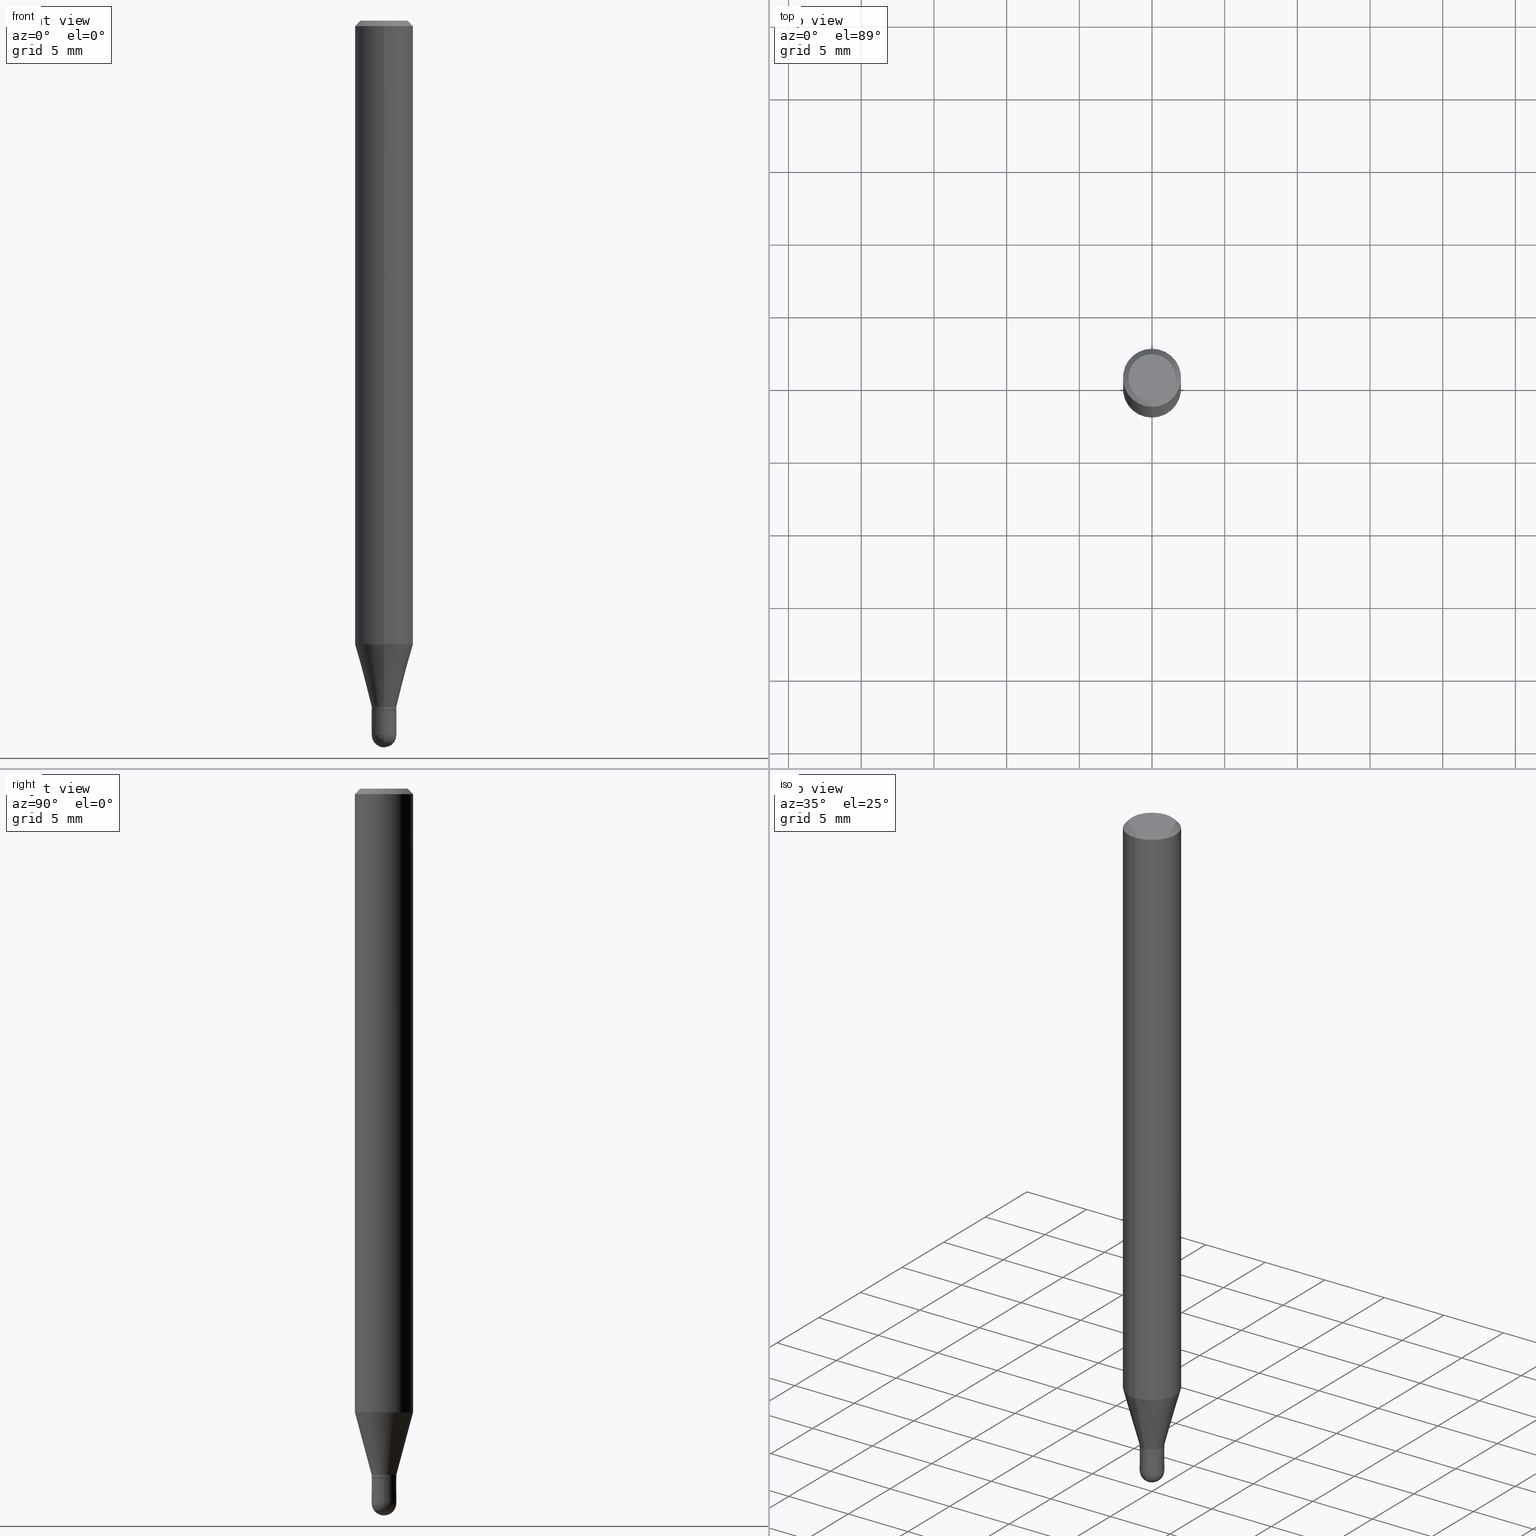
[diagram: canonical four-view strip — front | top / right | iso, engineering-drawing reading convention]
A machine part, canonical four-view strip (front | top / right | iso — engineering-drawing reading convention). The complete STEP part file that produces these views, byte-faithful:
ISO-10303-21;
HEADER;
FILE_DESCRIPTION (( 'STEP AP203' ),
    '1' );
FILE_NAME ('02016.STEP',
    '2024-03-07T19:55:44',
    ( '' ),
    ( '' ),
    'SwSTEP 2.0',
    'SolidWorks 2023',
    '' );
FILE_SCHEMA (( 'CONFIG_CONTROL_DESIGN' ));
ENDSEC;

DATA;
#1 = DIRECTION ( 'NONE',  ( 4.937700262164548042E-15, 0.7071067811865451302, -0.7071067811865499042 ) ) ;
#2 = ORIENTED_EDGE ( 'NONE', *, *, #204, .T. ) ;
#3 = DIRECTION ( 'NONE',  ( -6.982962677686264344E-15, -1.000000000000000000, 3.491511468994125374E-15 ) ) ;
#4 = ORIENTED_EDGE ( 'NONE', *, *, #497, .F. ) ;
#5 = AXIS2_PLACEMENT_3D ( 'NONE', #99, #219, #140 ) ;
#6 = APPROVAL_PERSON_ORGANIZATION ( #127, #77, #210 ) ;
#7 = DIRECTION ( 'NONE',  ( -2.445447766413159620E-29, 3.491511468994126163E-15, 1.000000000000000000 ) ) ;
#8 = VERTEX_POINT ( 'NONE', #371 ) ;
#9 = DIRECTION ( 'NONE',  ( -7.105427357601001859E-15, -1.000000000000000000, 0.000000000000000000 ) ) ;
#10 = CARTESIAN_POINT ( 'NONE',  ( 5.595524044111203155E-16, 0.07874999999999994504, -0.01500000000000004108 ) ) ;
#11 = DIRECTION ( 'NONE',  ( -6.982962677686265922E-15, -1.000000000000000000, 0.000000000000000000 ) ) ;
#12 = VERTEX_POINT ( 'NONE', #10 ) ;
#13 = DIRECTION ( 'NONE',  ( -2.445447766413159620E-29, 3.491511468994126163E-15, 1.000000000000000000 ) ) ;
#14 = ORIENTED_EDGE ( 'NONE', *, *, #191, .F. ) ;
#15 = ADVANCED_FACE ( 'NONE', ( #326 ), #50, .T. ) ;
#16 = DATE_TIME_ROLE ( 'classification_date' ) ;
#17 = ORIENTED_EDGE ( 'NONE', *, *, #377, .F. ) ;
#18 = ADVANCED_FACE ( 'NONE', ( #375 ), #328, .T. ) ;
#19 = CARTESIAN_POINT ( 'NONE',  ( 4.451638707024993845E-16, 0.06375000000000000111, -1.050337537933412309E-16 ) ) ;
#20 = CIRCLE ( 'NONE', #80, 0.06375000000000000111 ) ;
#21 = DATE_AND_TIME ( #453, #391 ) ;
#22 = AXIS2_PLACEMENT_3D ( 'NONE', #481, #239, #287 ) ;
#23 = CARTESIAN_POINT ( 'NONE',  ( 4.544864673878857375E-29, -6.488974065125583763E-15, -1.858500000000000041 ) ) ;
#24 =( NAMED_UNIT ( * ) SI_UNIT ( $, .STERADIAN. ) SOLID_ANGLE_UNIT ( ) );
#25 = DIRECTION ( 'NONE',  ( -6.982962677686265922E-15, -1.000000000000000000, 0.000000000000000000 ) ) ;
#26 = DIRECTION ( 'NONE',  ( -6.982962677686265922E-15, -1.000000000000000000, 3.491511468994125769E-15 ) ) ;
#27 = CIRCLE ( 'NONE', #318, 0.03345000000000000751 ) ;
#28 = CARTESIAN_POINT ( 'NONE',  ( 4.732104413408548662E-29, -6.756190964728428780E-15, -1.935049999999999937 ) ) ;
#29 = CIRCLE ( 'NONE', #349, 0.07875000000000000056 ) ;
#30 = ADVANCED_FACE ( 'NONE', ( #494 ), #291, .F. ) ;
#31 = EDGE_CURVE ( 'NONE', #12, #473, #248, .T. ) ;
#32 = DIRECTION ( 'NONE',  ( -4.851104656540964275E-15, -0.7071067811865500152, -0.7071067811865450192 ) ) ;
#33 = DIRECTION ( 'NONE',  ( -1.000000000000000000, 6.982962677686265922E-15, -4.876176775795935793E-29 ) ) ;
#34 = ORIENTED_EDGE ( 'NONE', *, *, #370, .T. ) ;
#35 = CARTESIAN_POINT ( 'NONE',  ( 0.000000000000000000, 0.000000000000000000, 0.000000000000000000 ) ) ;
#36 = ORIENTED_EDGE ( 'NONE', *, *, #67, .F. ) ;
#37 = CIRCLE ( 'NONE', #398, 0.07875000000000000056 ) ;
#38 = DIRECTION ( 'NONE',  ( -2.445447766413159620E-29, 3.491511468994126163E-15, 1.000000000000000000 ) ) ;
#39 = LINE ( 'NONE', #367, #194 ) ;
#40 = EDGE_LOOP ( 'NONE', ( #485, #482, #397, #53 ) ) ;
#41 = DIRECTION ( 'NONE',  ( 1.000000000000000000, -6.982962677686265922E-15, 4.876176775795935793E-29 ) ) ;
#42 = ORIENTED_EDGE ( 'NONE', *, *, #225, .T. ) ;
#43 = CLOSED_SHELL ( 'NONE', ( #231, #207, #220, #15, #401 ) ) ;
#44 = CONICAL_SURFACE ( 'NONE', #106, 0.03295000000000000012, 0.7853981633974739252 ) ;
#45 = CARTESIAN_POINT ( 'NONE',  ( 4.131432624267467595E-29, -5.898692496779038279E-15, -1.689438098417130441 ) ) ;
#46 = ORIENTED_EDGE ( 'NONE', *, *, #204, .F. ) ;
#47 = APPLICATION_CONTEXT ( 'configuration controlled 3d designs of mechanical parts and assemblies' ) ;
#48 = ORIENTED_EDGE ( 'NONE', *, *, #217, .T. ) ;
#49 = DIRECTION ( 'NONE',  ( -6.982962677686264344E-15, -1.000000000000000000, 3.469013325287953293E-15 ) ) ;
#50 = SPHERICAL_SURFACE ( 'NONE', #230, 0.03344999999999980628 ) ;
#51 = AXIS2_PLACEMENT_3D ( 'NONE', #125, #244, #41 ) ;
#52 = APPROVAL_PERSON_ORGANIZATION ( #381, #226, #293 ) ;
#53 = ORIENTED_EDGE ( 'NONE', *, *, #502, .F. ) ;
#54 = SHAPE_DEFINITION_REPRESENTATION ( #405, #343 ) ;
#55 = DIRECTION ( 'NONE',  ( -2.445447766413159620E-29, 3.491511468994126163E-15, 1.000000000000000000 ) ) ;
#56 = DIRECTION ( 'NONE',  ( 6.982962677686264344E-15, 1.000000000000000000, -3.496114991891765576E-15 ) ) ;
#57 = AXIS2_PLACEMENT_3D ( 'NONE', #478, #118, #155 ) ;
#58 = CARTESIAN_POINT ( 'NONE',  ( -2.300886202297167488E-16, -0.03295000000000652268, -1.868099999999999872 ) ) ;
#59 = PERSON ( 'UNSPECIFIED', 'UNSPECIFIED', 'UNSPECIFIED', ('UNSPECIFIED'), ('UNSPECIFIED'), ('UNSPECIFIED') ) ;
#60 = CARTESIAN_POINT ( 'NONE',  ( 3.668171649619681854E-31, -5.237267203491107326E-17, -0.01499999999999976526 ) ) ;
#61 = FACE_OUTER_BOUND ( 'NONE', #509, .T. ) ;
#62 = APPROVAL ( #334, 'UNSPECIFIED' ) ;
#63 = VECTOR ( 'NONE', #66, 39.37007874015748143 ) ;
#64 = PLANE ( 'NONE',  #98 ) ;
#65 = ORIENTED_EDGE ( 'NONE', *, *, #297, .F. ) ;
#66 = DIRECTION ( 'NONE',  ( -2.445447766413159620E-29, 3.491511468994125769E-15, 1.000000000000000000 ) ) ;
#67 = EDGE_CURVE ( 'NONE', #288, #417, #424, .T. ) ;
#68 = DIRECTION ( 'NONE',  ( -2.445447766413159620E-29, 3.491511468994126163E-15, 1.000000000000000000 ) ) ;
#69 = VERTEX_POINT ( 'NONE', #252 ) ;
#70 = CARTESIAN_POINT ( 'NONE',  ( -5.499083108677933457E-16, -0.07875000000000000056, 2.749565281832874225E-16 ) ) ;
#71 = AXIS2_PLACEMENT_3D ( 'NONE', #60, #208, #91 ) ;
#72 = EDGE_LOOP ( 'NONE', ( #324, #321, #188, #114 ) ) ;
#73 = PLANE ( 'NONE',  #319 ) ;
#74 = ORIENTED_EDGE ( 'NONE', *, *, #286, .F. ) ;
#75 = CYLINDRICAL_SURFACE ( 'NONE', #51, 0.03345000000000000751 ) ;
#76 = EDGE_LOOP ( 'NONE', ( #249, #407, #48, #285 ) ) ;
#77 = APPROVAL ( #90, 'UNSPECIFIED' ) ;
#78 = FACE_OUTER_BOUND ( 'NONE', #79, .T. ) ;
#79 = EDGE_LOOP ( 'NONE', ( #240, #156, #14, #36 ) ) ;
#80 = AXIS2_PLACEMENT_3D ( 'NONE', #175, #173, #342 ) ;
#81 = AXIS2_PLACEMENT_3D ( 'NONE', #35, #110, #503 ) ;
#82 = CC_DESIGN_SECURITY_CLASSIFICATION ( #410, ( #455 ) ) ;
#83 = DIRECTION ( 'NONE',  ( 1.000000000000000000, -6.982962677686277755E-15, 0.000000000000000000 ) ) ;
#84 = ORIENTED_EDGE ( 'NONE', *, *, #297, .T. ) ;
#85 = CARTESIAN_POINT ( 'NONE',  ( 2.335801015686522499E-16, 0.03344999999999315188, -1.935049999999999937 ) ) ;
#86 = FACE_OUTER_BOUND ( 'NONE', #309, .T. ) ;
#87 = EDGE_LOOP ( 'NONE', ( #282, #450, #46, #195, #224 ) ) ;
#88 = VECTOR ( 'NONE', #308, 39.37007874015748143 ) ;
#89 = ORGANIZATION ( 'UNSPECIFIED', 'UNSPECIFIED', '' ) ;
#90 = APPROVAL_STATUS ( 'not_yet_approved' ) ;
#91 = DIRECTION ( 'NONE',  ( -6.982962677686264344E-15, -1.000000000000000000, 3.496114991891765576E-15 ) ) ;
#92 = COORDINATED_UNIVERSAL_TIME_OFFSET ( 5, 0, .BEHIND. ) ;
#93 = DIRECTION ( 'NONE',  ( 2.445447766413159620E-29, -3.491511468994125769E-15, -1.000000000000000000 ) ) ;
#94 = ADVANCED_FACE ( 'NONE', ( #216 ), #419, .T. ) ;
#95 = CALENDAR_DATE ( 2024, 7, 3 ) ;
#96 = LINE ( 'NONE', #427, #105 ) ;
#97 = PERSON_AND_ORGANIZATION_ROLE ( 'design_owner' ) ;
#98 = AXIS2_PLACEMENT_3D ( 'NONE', #147, #268, #33 ) ;
#99 = CARTESIAN_POINT ( 'NONE',  ( 4.568380276834453485E-29, -6.522436289092879591E-15, -1.868099999999999872 ) ) ;
#100 = ADVANCED_FACE ( 'NONE', ( #61 ), #430, .T. ) ;
#101 = PERSON_AND_ORGANIZATION ( #59, #89 ) ;
#102 = FACE_OUTER_BOUND ( 'NONE', #109, .T. ) ;
#103 = CARTESIAN_POINT ( 'NONE',  ( -2.335801015686050661E-16, -0.03344999999999992424, 1.167910586378532433E-16 ) ) ;
#104 = VERTEX_POINT ( 'NONE', #498 ) ;
#105 = VECTOR ( 'NONE', #380, 39.37007874015748143 ) ;
#106 = AXIS2_PLACEMENT_3D ( 'NONE', #372, #369, #11 ) ;
#107 = DIRECTION ( 'NONE',  ( 6.982962677686265133E-15, 1.000000000000000000, 0.000000000000000000 ) ) ;
#108 = CARTESIAN_POINT ( 'NONE',  ( 2.341238314329986674E-16, 0.03294999999999347756, -1.868099999999999872 ) ) ;
#109 = EDGE_LOOP ( 'NONE', ( #442, #154, #190, #395 ) ) ;
#110 = DIRECTION ( 'NONE',  ( -2.445468806185136597E-29, 3.491481338843145583E-15, 1.000000000000000000 ) ) ;
#111 = ORIENTED_EDGE ( 'NONE', *, *, #138, .T. ) ;
#112 = DIRECTION ( 'NONE',  ( 1.000000000000000000, -6.982962677686277755E-15, 0.000000000000000000 ) ) ;
#113 = EDGE_CURVE ( 'NONE', #117, #417, #492, .T. ) ;
#114 = ORIENTED_EDGE ( 'NONE', *, *, #255, .F. ) ;
#115 = CONICAL_SURFACE ( 'NONE', #178, 0.03344999999999992424, 0.2617993877991506846 ) ;
#116 =( LENGTH_UNIT ( ) NAMED_UNIT ( * ) SI_UNIT ( $, .METRE. ) );
#117 = VERTEX_POINT ( 'NONE', #459 ) ;
#118 = DIRECTION ( 'NONE',  ( -2.445447766413159620E-29, 3.491511468994126163E-15, 1.000000000000000000 ) ) ;
#119 = EDGE_LOOP ( 'NONE', ( #270, #445 ) ) ;
#120 = CYLINDRICAL_SURFACE ( 'NONE', #439, 0.07875000000000000056 ) ;
#121 = VERTEX_POINT ( 'NONE', #132 ) ;
#122 = CIRCLE ( 'NONE', #22, 0.07875000000000000056 ) ;
#123 = DIRECTION ( 'NONE',  ( -6.982962677686265922E-15, -1.000000000000000000, 0.000000000000000000 ) ) ;
#124 = ORIENTED_EDGE ( 'NONE', *, *, #158, .T. ) ;
#125 = CARTESIAN_POINT ( 'NONE',  ( 0.000000000000000000, 0.000000000000000000, 0.000000000000000000 ) ) ;
#126 = ORIENTED_EDGE ( 'NONE', *, *, #31, .F. ) ;
#127 = PERSON_AND_ORGANIZATION ( #59, #89 ) ;
#128 = DIRECTION ( 'NONE',  ( -2.445447766413159620E-29, 3.491511468994126163E-15, 1.000000000000000000 ) ) ;
#129 = AXIS2_PLACEMENT_3D ( 'NONE', #279, #323, #3 ) ;
#130 = APPROVAL_STATUS ( 'not_yet_approved' ) ;
#131 = EDGE_CURVE ( 'NONE', #274, #121, #96, .T. ) ;
#132 = CARTESIAN_POINT ( 'NONE',  ( -5.499083108677522263E-16, -0.07875000000000592637, -1.689438098417130218 ) ) ;
#133 = CALENDAR_DATE ( 2024, 7, 3 ) ;
#134 = DIRECTION ( 'NONE',  ( -2.445447766413159620E-29, 3.491511468994126163E-15, 1.000000000000000000 ) ) ;
#135 = EDGE_CURVE ( 'NONE', #69, #393, #408, .T. ) ;
#136 = APPLICATION_PROTOCOL_DEFINITION ( 'international standard', 'config_control_design', 1994, #47 ) ;
#137 = CARTESIAN_POINT ( 'NONE',  ( 4.567118248553216749E-29, -6.520746819493429701E-15, -1.867600000000000149 ) ) ;
#138 = EDGE_CURVE ( 'NONE', #8, #431, #144, .T. ) ;
#139 = COORDINATED_UNIVERSAL_TIME_OFFSET ( 5, 0, .BEHIND. ) ;
#140 = DIRECTION ( 'NONE',  ( 1.000000000000000000, -6.982962677686279332E-15, 0.000000000000000000 ) ) ;
#141 = LINE ( 'NONE', #307, #339 ) ;
#142 = CYLINDRICAL_SURFACE ( 'NONE', #493, 0.07875000000000000056 ) ;
#143 = VERTEX_POINT ( 'NONE', #387 ) ;
#144 = CIRCLE ( 'NONE', #467, 0.03345000000000000057 ) ;
#145 = CIRCLE ( 'NONE', #250, 0.03345000000000000751 ) ;
#146 = DIRECTION ( 'NONE',  ( 6.982962677686265922E-15, 1.000000000000000000, 0.000000000000000000 ) ) ;
#147 = CARTESIAN_POINT ( 'NONE',  ( 2.335801015686512638E-16, 0.03344999999999347801, -1.868099999999999872 ) ) ;
#148 = EDGE_LOOP ( 'NONE', ( #124, #185, #4, #316 ) ) ;
#149 = EDGE_CURVE ( 'NONE', #161, #198, #20, .T. ) ;
#150 = DIRECTION ( 'NONE',  ( -6.982962677686264344E-15, -1.000000000000000000, 3.491511468994126163E-15 ) ) ;
#151 = ORIENTED_EDGE ( 'NONE', *, *, #404, .F. ) ;
#152 = FACE_OUTER_BOUND ( 'NONE', #366, .T. ) ;
#153 = VECTOR ( 'NONE', #411, 39.37007874015748143 ) ;
#154 = ORIENTED_EDGE ( 'NONE', *, *, #286, .T. ) ;
#155 = DIRECTION ( 'NONE',  ( -6.982962677686265922E-15, -1.000000000000000000, 0.000000000000000000 ) ) ;
#156 = ORIENTED_EDGE ( 'NONE', *, *, #361, .T. ) ;
#157 = FACE_OUTER_BOUND ( 'NONE', #245, .T. ) ;
#158 = EDGE_CURVE ( 'NONE', #274, #487, #382, .T. ) ;
#159 = ORIENTED_EDGE ( 'NONE', *, *, #271, .T. ) ;
#160 = CARTESIAN_POINT ( 'NONE',  ( 0.000000000000000000, 0.000000000000000000, 0.000000000000000000 ) ) ;
#161 = VERTEX_POINT ( 'NONE', #346 ) ;
#162 = CIRCLE ( 'NONE', #212, 0.03295000000000000012 ) ;
#163 = LOCAL_TIME ( 14, 55, 44.00000000000000000, #215 ) ;
#164 = CARTESIAN_POINT ( 'NONE',  ( 4.729243882171243722E-29, -6.760287408271577082E-15, -1.935050000000000159 ) ) ;
#165 = ORIENTED_EDGE ( 'NONE', *, *, #149, .F. ) ;
#166 = MANIFOLD_SOLID_BREP ( 'Body-Move/Copy2[2]', #347 ) ;
#167 = ORIENTED_EDGE ( 'NONE', *, *, #31, .T. ) ;
#168 = DATE_AND_TIME ( #133, #196 ) ;
#169 = DIRECTION ( 'NONE',  ( 1.000000000000000000, -6.982962677686277755E-15, 0.000000000000000000 ) ) ;
#170 = AXIS2_PLACEMENT_3D ( 'NONE', #28, #211, #169 ) ;
#171 = VECTOR ( 'NONE', #1, 39.37007874015748143 ) ;
#172 = PERSON_AND_ORGANIZATION_ROLE ( 'design_supplier' ) ;
#173 = DIRECTION ( 'NONE',  ( -2.445447766413159620E-29, 3.491511468994126163E-15, 1.000000000000000000 ) ) ;
#174 = DIRECTION ( 'NONE',  ( 0.000000000000000000, 0.000000000000000000, 1.000000000000000000 ) ) ;
#175 = CARTESIAN_POINT ( 'NONE',  ( -5.749252704915138258E-45, 8.208550611080714984E-31, 2.351002047100685974E-16 ) ) ;
#176 = PERSON_AND_ORGANIZATION ( #59, #89 ) ;
#177 = DIRECTION ( 'NONE',  ( -6.982962677686265922E-15, -1.000000000000000000, 0.000000000000000000 ) ) ;
#178 = AXIS2_PLACEMENT_3D ( 'NONE', #444, #325, #365 ) ;
#179 = LINE ( 'NONE', #429, #171 ) ;
#180 = LINE ( 'NONE', #359, #88 ) ;
#181 = EDGE_CURVE ( 'NONE', #487, #274, #446, .T. ) ;
#182 = FACE_OUTER_BOUND ( 'NONE', #234, .T. ) ;
#183 = VECTOR ( 'NONE', #263, 39.37007874015748143 ) ;
#184 = DIRECTION ( 'NONE',  ( -6.982962677686264344E-15, -1.000000000000000000, 3.496114991891765576E-15 ) ) ;
#185 = ORIENTED_EDGE ( 'NONE', *, *, #388, .T. ) ;
#186 = DIRECTION ( 'NONE',  ( -2.445447766413159620E-29, 3.491511468994126163E-15, 1.000000000000000000 ) ) ;
#187 = ADVANCED_FACE ( 'NONE', ( #261 ), #500, .T. ) ;
#188 = ORIENTED_EDGE ( 'NONE', *, *, #135, .F. ) ;
#189 = DIRECTION ( 'NONE',  ( -2.445468806185136597E-29, 3.491481338843145583E-15, 1.000000000000000000 ) ) ;
#190 = ORIENTED_EDGE ( 'NONE', *, *, #271, .F. ) ;
#191 = EDGE_CURVE ( 'NONE', #417, #117, #310, .T. ) ;
#192 = CARTESIAN_POINT ( 'NONE',  ( -5.499083108677930499E-16, -0.07875000000000004219, -0.01499999999999948944 ) ) ;
#193 = AXIS2_PLACEMENT_3D ( 'NONE', #335, #254, #56 ) ;
#194 = VECTOR ( 'NONE', #277, 39.37007874015748143 ) ;
#195 = ORIENTED_EDGE ( 'NONE', *, *, #348, .F. ) ;
#196 = LOCAL_TIME ( 14, 55, 44.00000000000000000, #295 ) ;
#197 = DIRECTION ( 'NONE',  ( -2.445447766413159620E-29, 3.491511468994126163E-15, 1.000000000000000000 ) ) ;
#198 = VERTEX_POINT ( 'NONE', #257 ) ;
#199 = CARTESIAN_POINT ( 'NONE',  ( 4.732104413408548662E-29, -6.756190964728428780E-15, -1.935049999999999937 ) ) ;
#200 = DIRECTION ( 'NONE',  ( 2.445447766413159620E-29, -3.491511468994126163E-15, -1.000000000000000000 ) ) ;
#201 = LINE ( 'NONE', #362, #153 ) ;
#202 = DIRECTION ( 'NONE',  ( 6.982962677686265922E-15, 1.000000000000000000, 0.000000000000000000 ) ) ;
#203 = AXIS2_PLACEMENT_3D ( 'NONE', #466, #68, #315 ) ;
#204 = EDGE_CURVE ( 'NONE', #431, #8, #329, .T. ) ;
#205 = PERSON_AND_ORGANIZATION ( #59, #89 ) ;
#206 = ORIENTED_EDGE ( 'NONE', *, *, #426, .T. ) ;
#207 = ADVANCED_FACE ( 'NONE', ( #305 ), #262, .T. ) ;
#208 = DIRECTION ( 'NONE',  ( -2.445447766413159620E-29, 3.491511468994126163E-15, 1.000000000000000000 ) ) ;
#209 = APPLICATION_CONTEXT ( 'configuration controlled 3d designs of mechanical parts and assemblies' ) ;
#210 = APPROVAL_ROLE ( '' ) ;
#211 = DIRECTION ( 'NONE',  ( -2.445468806185136597E-29, 3.491481338843145583E-15, 1.000000000000000000 ) ) ;
#212 = AXIS2_PLACEMENT_3D ( 'NONE', #476, #7, #123 ) ;
#213 = LOCAL_TIME ( 14, 55, 44.00000000000000000, #341 ) ;
#214 = ADVANCED_FACE ( 'NONE', ( #102 ), #142, .T. ) ;
#215 = COORDINATED_UNIVERSAL_TIME_OFFSET ( 5, 0, .BEHIND. ) ;
#216 = FACE_OUTER_BOUND ( 'NONE', #452, .T. ) ;
#217 = EDGE_CURVE ( 'NONE', #417, #274, #471, .T. ) ;
#218 = APPROVAL_ROLE ( '' ) ;
#219 = DIRECTION ( 'NONE',  ( -2.445468806185136597E-29, 3.491481338843145583E-15, 1.000000000000000000 ) ) ;
#220 = ADVANCED_FACE ( 'NONE', ( #311 ), #64, .F. ) ;
#221 = DIRECTION ( 'NONE',  ( -4.937700262164674260E-15, -0.7071067811865632269, 0.7071067811865319186 ) ) ;
#222 = CC_DESIGN_APPROVAL ( #77, ( #410 ) ) ;
#223 = CARTESIAN_POINT ( 'NONE',  ( 4.732104413408548662E-29, -6.756190964728428780E-15, -1.935049999999999937 ) ) ;
#224 = ORIENTED_EDGE ( 'NONE', *, *, #377, .T. ) ;
#225 = EDGE_CURVE ( 'NONE', #393, #104, #374, .T. ) ;
#226 = APPROVAL ( #130, 'UNSPECIFIED' ) ;
#227 = LINE ( 'NONE', #273, #409 ) ;
#228 = ORIENTED_EDGE ( 'NONE', *, *, #304, .T. ) ;
#229 = CARTESIAN_POINT ( 'NONE',  ( 4.729243882171243722E-29, -6.760287408271577082E-15, -1.935050000000000159 ) ) ;
#230 = AXIS2_PLACEMENT_3D ( 'NONE', #243, #413, #202 ) ;
#231 = ADVANCED_FACE ( 'NONE', ( #356 ), #400, .T. ) ;
#232 = CIRCLE ( 'NONE', #301, 0.03344999999999980628 ) ;
#233 = LINE ( 'NONE', #70, #63 ) ;
#234 = EDGE_LOOP ( 'NONE', ( #403, #477 ) ) ;
#235 = CARTESIAN_POINT ( 'NONE',  ( 4.732104413408548662E-29, -6.756190964728428780E-15, -1.935049999999999937 ) ) ;
#236 = ORIENTED_EDGE ( 'NONE', *, *, #113, .F. ) ;
#237 = FACE_OUTER_BOUND ( 'NONE', #40, .T. ) ;
#238 = VERTEX_POINT ( 'NONE', #435 ) ;
#239 = DIRECTION ( 'NONE',  ( -2.445447766413159620E-29, 3.491511468994126163E-15, 1.000000000000000000 ) ) ;
#240 = ORIENTED_EDGE ( 'NONE', *, *, #312, .T. ) ;
#241 = PRODUCT_DEFINITION ( 'UNKNOWN', '', #455, #422 ) ;
#242 = CARTESIAN_POINT ( 'NONE',  ( 4.568340972436423425E-29, -6.522492575227926704E-15, -1.868099999999999872 ) ) ;
#243 = CARTESIAN_POINT ( 'NONE',  ( 4.729243882171243722E-29, -6.760287408271577082E-15, -1.935050000000000159 ) ) ;
#244 = DIRECTION ( 'NONE',  ( -2.445468806185136597E-29, 3.491481338843145583E-15, 1.000000000000000000 ) ) ;
#245 = EDGE_LOOP ( 'NONE', ( #441, #206, #353, #236 ) ) ;
#246 = DIRECTION ( 'NONE',  ( -2.445447766413159620E-29, 3.491511468994126163E-15, 1.000000000000000000 ) ) ;
#247 = EDGE_CURVE ( 'NONE', #121, #473, #233, .T. ) ;
#248 = CIRCLE ( 'NONE', #71, 0.07875000000000000056 ) ;
#249 = ORIENTED_EDGE ( 'NONE', *, *, #370, .F. ) ;
#250 = AXIS2_PLACEMENT_3D ( 'NONE', #223, #269, #112 ) ;
#251 = CARTESIAN_POINT ( 'NONE',  ( 0.000000000000000000, 0.000000000000000000, 0.000000000000000000 ) ) ;
#252 = CARTESIAN_POINT ( 'NONE',  ( -0.03345000000000000751, -6.401637081798900423E-15, -1.935049999999999937 ) ) ;
#253 =( NAMED_UNIT ( * ) PLANE_ANGLE_UNIT ( ) SI_UNIT ( $, .RADIAN. ) );
#254 = DIRECTION ( 'NONE',  ( 2.445447766413159620E-29, -3.491511468994126163E-15, -1.000000000000000000 ) ) ;
#255 = EDGE_CURVE ( 'NONE', #470, #69, #145, .T. ) ;
#256 = PERSON_AND_ORGANIZATION ( #59, #89 ) ;
#257 = CARTESIAN_POINT ( 'NONE',  ( 4.975360907851465623E-16, 0.06375000000000000111, 1.251634856169309859E-17 ) ) ;
#258 = AXIS2_PLACEMENT_3D ( 'NONE', #496, #134, #461 ) ;
#259 = CC_DESIGN_DATE_AND_TIME_ASSIGNMENT ( #168, #336, ( #241 ) ) ;
#260 = PERSON_AND_ORGANIZATION ( #59, #89 ) ;
#261 = FACE_OUTER_BOUND ( 'NONE', #76, .T. ) ;
#262 = SPHERICAL_SURFACE ( 'NONE', #281, 0.03344999999999980628 ) ;
#263 = DIRECTION ( 'NONE',  ( -2.445447766413159620E-29, 3.491511468994125769E-15, 1.000000000000000000 ) ) ;
#264 = ORIENTED_EDGE ( 'NONE', *, *, #158, .F. ) ;
#265 = CC_DESIGN_DATE_AND_TIME_ASSIGNMENT ( #21, #16, ( #410 ) ) ;
#266 = AXIS2_PLACEMENT_3D ( 'NONE', #137, #491, #25 ) ;
#267 = CIRCLE ( 'NONE', #203, 0.03295000000000000012 ) ;
#268 = DIRECTION ( 'NONE',  ( 2.438088387897960049E-29, -3.491481338843145188E-15, -1.000000000000000000 ) ) ;
#269 = DIRECTION ( 'NONE',  ( -2.445468806185136597E-29, 3.491481338843145583E-15, 1.000000000000000000 ) ) ;
#270 = ORIENTED_EDGE ( 'NONE', *, *, #404, .T. ) ;
#271 = EDGE_CURVE ( 'NONE', #473, #12, #29, .T. ) ;
#272 = DIRECTION ( 'NONE',  ( 1.000000000000000000, -6.982962677686277755E-15, 0.000000000000000000 ) ) ;
#273 = CARTESIAN_POINT ( 'NONE',  ( -5.402642173245076924E-16, -0.07875000000000004219, -0.01499999999999948944 ) ) ;
#274 = VERTEX_POINT ( 'NONE', #505 ) ;
#275 = CARTESIAN_POINT ( 'NONE',  ( -2.376765451117054943E-16, -0.03345000000000666190, -1.935049999999999937 ) ) ;
#276 = EDGE_LOOP ( 'NONE', ( #363, #415, #17, #278 ) ) ;
#277 = DIRECTION ( 'NONE',  ( -2.445447766413159620E-29, 3.491511468994125769E-15, 1.000000000000000000 ) ) ;
#278 = ORIENTED_EDGE ( 'NONE', *, *, #225, .F. ) ;
#279 = CARTESIAN_POINT ( 'NONE',  ( -5.749252704915138258E-45, 8.208550611080714984E-31, 2.351002047100685974E-16 ) ) ;
#280 = AXIS2_PLACEMENT_3D ( 'NONE', #23, #456, #299 ) ;
#281 = AXIS2_PLACEMENT_3D ( 'NONE', #351, #433, #146 ) ;
#282 = ORIENTED_EDGE ( 'NONE', *, *, #255, .T. ) ;
#283 = CC_DESIGN_APPROVAL ( #226, ( #455 ) ) ;
#284 = DIRECTION ( 'NONE',  ( -6.982962677686264344E-15, -1.000000000000000000, 3.491511468994126163E-15 ) ) ;
#285 = ORIENTED_EDGE ( 'NONE', *, *, #181, .F. ) ;
#286 = EDGE_CURVE ( 'NONE', #143, #12, #402, .T. ) ;
#287 = DIRECTION ( 'NONE',  ( -6.982962677686264344E-15, -1.000000000000000000, 3.469013325287953293E-15 ) ) ;
#288 = VERTEX_POINT ( 'NONE', #511 ) ;
#289 = CALENDAR_DATE ( 2024, 7, 3 ) ;
#290 = CC_DESIGN_PERSON_AND_ORGANIZATION_ASSIGNMENT ( #458, #464, ( #455 ) ) ;
#291 = PLANE ( 'NONE',  #354 ) ;
#292 = AXIS2_PLACEMENT_3D ( 'NONE', #235, #472, #272 ) ;
#293 = APPROVAL_ROLE ( '' ) ;
#294 = DIRECTION ( 'NONE',  ( 6.982962677686264344E-15, 1.000000000000000000, -3.496114991891765576E-15 ) ) ;
#295 = COORDINATED_UNIVERSAL_TIME_OFFSET ( 5, 0, .BEHIND. ) ;
#296 = CARTESIAN_POINT ( 'NONE',  ( 4.568380276834453485E-29, -6.522436289092879591E-15, -1.868099999999999872 ) ) ;
#297 = EDGE_CURVE ( 'NONE', #161, #473, #227, .T. ) ;
#298 = MECHANICAL_CONTEXT ( 'NONE', #47, 'mechanical' ) ;
#299 = DIRECTION ( 'NONE',  ( -6.982962677686265922E-15, -1.000000000000000000, 0.000000000000000000 ) ) ;
#300 = AXIS2_PLACEMENT_3D ( 'NONE', #448, #200, #294 ) ;
#301 = AXIS2_PLACEMENT_3D ( 'NONE', #164, #414, #9 ) ;
#302 = UNCERTAINTY_MEASURE_WITH_UNIT (LENGTH_MEASURE( 1.000000000000000082E-05 ), #486, 'distance_accuracy_value', 'NONE');
#303 = APPROVAL_DATE_TIME ( #499, #62 ) ;
#304 = EDGE_CURVE ( 'NONE', #198, #12, #179, .T. ) ;
#305 = FACE_OUTER_BOUND ( 'NONE', #72, .T. ) ;
#306 = EDGE_CURVE ( 'NONE', #69, #8, #180, .T. ) ;
#307 = CARTESIAN_POINT ( 'NONE',  ( 0.03345000000000000751, -2.335801015686056578E-16, 1.631081131503740879E-30 ) ) ;
#308 = DIRECTION ( 'NONE',  ( -2.445468806185136877E-29, 3.491481338843145188E-15, 1.000000000000000000 ) ) ;
#309 = EDGE_LOOP ( 'NONE', ( #74, #438, #313, #126 ) ) ;
#310 = CIRCLE ( 'NONE', #258, 0.03344999999999992424 ) ;
#311 = FACE_OUTER_BOUND ( 'NONE', #412, .T. ) ;
#312 = EDGE_CURVE ( 'NONE', #288, #238, #267, .T. ) ;
#313 = ORIENTED_EDGE ( 'NONE', *, *, #247, .T. ) ;
#314 = CARTESIAN_POINT ( 'NONE',  ( 4.568340972436423425E-29, -6.522492575227926704E-15, -1.868099999999999872 ) ) ;
#315 = DIRECTION ( 'NONE',  ( -6.982962677686265922E-15, -1.000000000000000000, 0.000000000000000000 ) ) ;
#316 = ORIENTED_EDGE ( 'NONE', *, *, #131, .F. ) ;
#317 = AXIS2_PLACEMENT_3D ( 'NONE', #389, #55, #26 ) ;
#318 = AXIS2_PLACEMENT_3D ( 'NONE', #199, #189, #83 ) ;
#319 = AXIS2_PLACEMENT_3D ( 'NONE', #314, #350, #440 ) ;
#320 = CARTESIAN_POINT ( 'NONE',  ( -2.335801015685601996E-16, -0.03345000000000655782, -1.867600000000000149 ) ) ;
#321 = ORIENTED_EDGE ( 'NONE', *, *, #454, .T. ) ;
#322 = EDGE_CURVE ( 'NONE', #333, #470, #425, .T. ) ;
#323 = DIRECTION ( 'NONE',  ( -2.445447766413159620E-29, 3.491511468994126163E-15, 1.000000000000000000 ) ) ;
#324 = ORIENTED_EDGE ( 'NONE', *, *, #322, .F. ) ;
#325 = DIRECTION ( 'NONE',  ( -2.445447766413159620E-29, 3.491511468994126163E-15, 1.000000000000000000 ) ) ;
#326 = FACE_OUTER_BOUND ( 'NONE', #276, .T. ) ;
#327 = DIRECTION ( 'NONE',  ( 5.024295867788190974E-15, 0.7071067811865681119, 0.7071067811865270336 ) ) ;
#328 = CONICAL_SURFACE ( 'NONE', #300, 0.07875000000000000056, 0.7853981633974483900 ) ;
#329 = CIRCLE ( 'NONE', #5, 0.03345000000000000057 ) ;
#330 = ORIENTED_EDGE ( 'NONE', *, *, #348, .T. ) ;
#331 = DIMENSIONAL_EXPONENTS ( 1.000000000000000000, 0.000000000000000000, 0.000000000000000000, 0.000000000000000000, 0.000000000000000000, 0.000000000000000000, 0.000000000000000000 ) ;
#332 = DIRECTION ( 'NONE',  ( -6.982962677686265922E-15, -1.000000000000000000, 0.000000000000000000 ) ) ;
#333 = VERTEX_POINT ( 'NONE', #394 ) ;
#334 = APPROVAL_STATUS ( 'not_yet_approved' ) ;
#335 = CARTESIAN_POINT ( 'NONE',  ( 3.668171649619681854E-31, -5.237267203491107326E-17, -0.01499999999999976526 ) ) ;
#336 = DATE_TIME_ROLE ( 'creation_date' ) ;
#337 = DIRECTION ( 'NONE',  ( -2.445447766413159620E-29, 3.491511468994126163E-15, 1.000000000000000000 ) ) ;
#338 = ADVANCED_FACE ( 'NONE', ( #182 ), #73, .F. ) ;
#339 = VECTOR ( 'NONE', #352, 39.37007874015748143 ) ;
#340 = LOCAL_TIME ( 14, 55, 44.00000000000000000, #139 ) ;
#341 = COORDINATED_UNIVERSAL_TIME_OFFSET ( 5, 0, .BEHIND. ) ;
#342 = DIRECTION ( 'NONE',  ( -6.982962677686264344E-15, -1.000000000000000000, 3.491511468994125374E-15 ) ) ;
#343 = ADVANCED_BREP_SHAPE_REPRESENTATION ( '02016', ( #510, #166, #468 ), #399 ) ;
#344 = CARTESIAN_POINT ( 'NONE',  ( 4.544864673878857375E-29, -6.488974065125583763E-15, -1.858500000000000041 ) ) ;
#345 = APPLICATION_PROTOCOL_DEFINITION ( 'international standard', 'config_control_design', 1994, #209 ) ;
#346 = CARTESIAN_POINT ( 'NONE',  ( -4.888104823412213911E-16, -0.06375000000000000111, 4.576840608584440900E-16 ) ) ;
#347 = CLOSED_SHELL ( 'NONE', ( #94, #488, #18, #214, #480, #443, #504, #100, #30, #338, #457, #187 ) ) ;
#348 = EDGE_CURVE ( 'NONE', #104, #431, #141, .T. ) ;
#349 = AXIS2_PLACEMENT_3D ( 'NONE', #465, #186, #184 ) ;
#350 = DIRECTION ( 'NONE',  ( -2.445447766413159620E-29, 3.491511468994125769E-15, 1.000000000000000000 ) ) ;
#351 = CARTESIAN_POINT ( 'NONE',  ( 4.729243882171243722E-29, -6.760287408271577082E-15, -1.935050000000000159 ) ) ;
#352 = DIRECTION ( 'NONE',  ( -2.445468806185136877E-29, 3.491481338843145188E-15, 1.000000000000000000 ) ) ;
#353 = ORIENTED_EDGE ( 'NONE', *, *, #67, .T. ) ;
#354 = AXIS2_PLACEMENT_3D ( 'NONE', #19, #93, #385 ) ;
#355 = AXIS2_PLACEMENT_3D ( 'NONE', #242, #13, #332 ) ;
#356 = FACE_OUTER_BOUND ( 'NONE', #87, .T. ) ;
#357 = ORIENTED_EDGE ( 'NONE', *, *, #304, .F. ) ;
#358 = CC_DESIGN_PERSON_AND_ORGANIZATION_ASSIGNMENT ( #256, #423, ( #241 ) ) ;
#359 = CARTESIAN_POINT ( 'NONE',  ( -0.03345000000000000751, 2.376765451117535655E-16, -1.645383787690266279E-30 ) ) ;
#360 = ORIENTED_EDGE ( 'NONE', *, *, #191, .T. ) ;
#361 = EDGE_CURVE ( 'NONE', #238, #117, #469, .T. ) ;
#362 = CARTESIAN_POINT ( 'NONE',  ( 2.376765451117983827E-16, 0.03344999999999343637, -1.858500000000000041 ) ) ;
#363 = ORIENTED_EDGE ( 'NONE', *, *, #454, .F. ) ;
#364 = AXIS2_PLACEMENT_3D ( 'NONE', #463, #337, #421 ) ;
#365 = DIRECTION ( 'NONE',  ( -6.982962677686265922E-15, -1.000000000000000000, 0.000000000000000000 ) ) ;
#366 = EDGE_LOOP ( 'NONE', ( #479, #368, #42, #330, #506 ) ) ;
#367 = CARTESIAN_POINT ( 'NONE',  ( 2.376765451117529246E-16, 0.03344999999999992424, -1.167910586378532433E-16 ) ) ;
#368 = ORIENTED_EDGE ( 'NONE', *, *, #135, .T. ) ;
#369 = DIRECTION ( 'NONE',  ( -2.445447766413159620E-29, 3.491511468994126163E-15, 1.000000000000000000 ) ) ;
#370 = EDGE_CURVE ( 'NONE', #117, #487, #39, .T. ) ;
#371 = CARTESIAN_POINT ( 'NONE',  ( -0.03345000000000000057, -6.401637081798900423E-15, -1.868099999999999872 ) ) ;
#372 = CARTESIAN_POINT ( 'NONE',  ( 4.568340972436423425E-29, -6.522492575227926704E-15, -1.868099999999999872 ) ) ;
#373 = VECTOR ( 'NONE', #221, 39.37007874015748143 ) ;
#374 = CIRCLE ( 'NONE', #292, 0.03345000000000000751 ) ;
#375 = FACE_OUTER_BOUND ( 'NONE', #512, .T. ) ;
#376 = APPROVAL_PERSON_ORGANIZATION ( #260, #62, #218 ) ;
#377 = EDGE_CURVE ( 'NONE', #104, #470, #27, .T. ) ;
#378 = PERSON_AND_ORGANIZATION_ROLE ( 'classification_officer' ) ;
#379 = ORIENTED_EDGE ( 'NONE', *, *, #217, .F. ) ;
#380 = DIRECTION ( 'NONE',  ( -1.807323732225332900E-15, -0.2588190451025185745, 0.9659258262890689783 ) ) ;
#381 = PERSON_AND_ORGANIZATION ( #59, #89 ) ;
#382 = CIRCLE ( 'NONE', #508, 0.03344999999999992424 ) ;
#383 = DIRECTION ( 'NONE',  ( -2.445468806185136597E-29, 3.491481338843145583E-15, 1.000000000000000000 ) ) ;
#384 = CC_DESIGN_APPROVAL ( #62, ( #241 ) ) ;
#385 = DIRECTION ( 'NONE',  ( 6.982962677686265922E-15, 1.000000000000000000, -3.491511468994125769E-15 ) ) ;
#386 = DATE_AND_TIME ( #460, #163 ) ;
#387 = CARTESIAN_POINT ( 'NONE',  ( 5.595524044111199211E-16, 0.07874999999999408862, -1.689438098417130885 ) ) ;
#388 = EDGE_CURVE ( 'NONE', #487, #143, #201, .T. ) ;
#389 = CARTESIAN_POINT ( 'NONE',  ( 0.000000000000000000, 0.000000000000000000, 0.000000000000000000 ) ) ;
#390 = AXIS2_PLACEMENT_3D ( 'NONE', #229, #396, #107 ) ;
#391 = LOCAL_TIME ( 14, 55, 44.00000000000000000, #92 ) ;
#392 = CARTESIAN_POINT ( 'NONE',  ( 5.595524044110787031E-16, 0.07875000000000000056, -2.749565281832874225E-16 ) ) ;
#393 = VERTEX_POINT ( 'NONE', #275 ) ;
#394 = CARTESIAN_POINT ( 'NONE',  ( 4.812475079356788804E-29, -6.875029237284306253E-15, -1.968500000000000139 ) ) ;
#395 = ORIENTED_EDGE ( 'NONE', *, *, #247, .F. ) ;
#396 = DIRECTION ( 'NONE',  ( 1.000000000000000000, -6.982962677686265922E-15, 4.883557194083112340E-29 ) ) ;
#397 = ORIENTED_EDGE ( 'NONE', *, *, #131, .T. ) ;
#398 = AXIS2_PLACEMENT_3D ( 'NONE', #45, #197, #49 ) ;
#399 =( GEOMETRIC_REPRESENTATION_CONTEXT ( 3 ) GLOBAL_UNCERTAINTY_ASSIGNED_CONTEXT ( ( #302 ) ) GLOBAL_UNIT_ASSIGNED_CONTEXT ( ( #486, #253, #24 ) ) REPRESENTATION_CONTEXT ( 'NONE', 'WORKASPACE' ) );
#400 = CYLINDRICAL_SURFACE ( 'NONE', #81, 0.03345000000000000751 ) ;
#401 = ADVANCED_FACE ( 'NONE', ( #152 ), #75, .T. ) ;
#402 = LINE ( 'NONE', #392, #183 ) ;
#403 = ORIENTED_EDGE ( 'NONE', *, *, #312, .F. ) ;
#404 = EDGE_CURVE ( 'NONE', #198, #161, #483, .T. ) ;
#405 = PRODUCT_DEFINITION_SHAPE ( 'NONE', 'NONE',  #241 ) ;
#406 = CARTESIAN_POINT ( 'NONE',  ( 0.03345000000000000057, -6.756016390661485446E-15, -1.868099999999999872 ) ) ;
#407 = ORIENTED_EDGE ( 'NONE', *, *, #113, .T. ) ;
#408 = CIRCLE ( 'NONE', #170, 0.03345000000000000751 ) ;
#409 = VECTOR ( 'NONE', #32, 39.37007874015748143 ) ;
#410 = SECURITY_CLASSIFICATION ( '', '', #416 ) ;
#411 = DIRECTION ( 'NONE',  ( 1.839019923739603076E-15, 0.2588190451025253469, 0.9659258262890670910 ) ) ;
#412 = EDGE_LOOP ( 'NONE', ( #2, #111 ) ) ;
#413 = DIRECTION ( 'NONE',  ( -1.000000000000000000, 6.982962677686265922E-15, -4.883557194083112901E-29 ) ) ;
#414 = DIRECTION ( 'NONE',  ( -1.000000000000000000, 7.105427357601001070E-15, -4.926315508542082329E-29 ) ) ;
#415 = ORIENTED_EDGE ( 'NONE', *, *, #322, .T. ) ;
#416 = SECURITY_CLASSIFICATION_LEVEL ( 'unclassified' ) ;
#417 = VERTEX_POINT ( 'NONE', #320 ) ;
#418 = APPROVAL_DATE_TIME ( #495, #77 ) ;
#419 = CYLINDRICAL_SURFACE ( 'NONE', #317, 0.03344999999999992424 ) ;
#420 = PRODUCT_RELATED_PRODUCT_CATEGORY ( 'detail', '', ( #436 ) ) ;
#421 = DIRECTION ( 'NONE',  ( -6.982962677686265922E-15, -1.000000000000000000, 3.491511468994125769E-15 ) ) ;
#422 = DESIGN_CONTEXT ( 'detailed design', #209, 'design' ) ;
#423 = PERSON_AND_ORGANIZATION_ROLE ( 'creator' ) ;
#424 = LINE ( 'NONE', #58, #373 ) ;
#425 = CIRCLE ( 'NONE', #390, 0.03344999999999980628 ) ;
#426 = EDGE_CURVE ( 'NONE', #238, #288, #162, .T. ) ;
#427 = CARTESIAN_POINT ( 'NONE',  ( -2.335801015685596573E-16, -0.03345000000000641210, -1.858500000000000041 ) ) ;
#428 = DIRECTION ( 'NONE',  ( 1.000000000000000000, -6.982962677686279332E-15, 0.000000000000000000 ) ) ;
#429 = CARTESIAN_POINT ( 'NONE',  ( 5.499083108677937401E-16, 0.07874999999999994504, -0.01500000000000004108 ) ) ;
#430 = CONICAL_SURFACE ( 'NONE', #193, 0.07875000000000000056, 0.7853981633974483900 ) ;
#431 = VERTEX_POINT ( 'NONE', #406 ) ;
#432 = CONICAL_SURFACE ( 'NONE', #355, 0.03295000000000000012, 0.7853981633974739252 ) ;
#433 = DIRECTION ( 'NONE',  ( -1.000000000000000000, 6.982962677686265922E-15, -4.883557194083112901E-29 ) ) ;
#434 = CC_DESIGN_PERSON_AND_ORGANIZATION_ASSIGNMENT ( #176, #97, ( #436 ) ) ;
#435 = CARTESIAN_POINT ( 'NONE',  ( 2.359001882723986237E-16, 0.03294999999999347756, -1.868099999999999872 ) ) ;
#436 = PRODUCT ( '02016', '02016', '', ( #298 ) ) ;
#437 = DIRECTION ( 'NONE',  ( -2.445447766413159620E-29, 3.491511468994125769E-15, 1.000000000000000000 ) ) ;
#438 = ORIENTED_EDGE ( 'NONE', *, *, #502, .T. ) ;
#439 = AXIS2_PLACEMENT_3D ( 'NONE', #160, #246, #284 ) ;
#440 = DIRECTION ( 'NONE',  ( -6.982962677686265922E-15, -1.000000000000000000, 3.491511468994125769E-15 ) ) ;
#441 = ORIENTED_EDGE ( 'NONE', *, *, #361, .F. ) ;
#442 = ORIENTED_EDGE ( 'NONE', *, *, #497, .T. ) ;
#443 = ADVANCED_FACE ( 'NONE', ( #237 ), #115, .T. ) ;
#444 = CARTESIAN_POINT ( 'NONE',  ( 4.544864673878857375E-29, -6.488974065125583763E-15, -1.858500000000000041 ) ) ;
#445 = ORIENTED_EDGE ( 'NONE', *, *, #149, .T. ) ;
#446 = CIRCLE ( 'NONE', #280, 0.03344999999999992424 ) ;
#447 = VECTOR ( 'NONE', #327, 39.37007874015748143 ) ;
#448 = CARTESIAN_POINT ( 'NONE',  ( 3.668171649619681854E-31, -5.237267203491107326E-17, -0.01499999999999976526 ) ) ;
#449 = LENGTH_MEASURE_WITH_UNIT ( LENGTH_MEASURE( 0.02539999999999999897 ), #116 );
#450 = ORIENTED_EDGE ( 'NONE', *, *, #306, .T. ) ;
#451 = CARTESIAN_POINT ( 'NONE',  ( 3.986144747614593244E-16, 0.03344999999999343637, -1.858500000000000041 ) ) ;
#452 = EDGE_LOOP ( 'NONE', ( #360, #34, #264, #379 ) ) ;
#453 = CALENDAR_DATE ( 2024, 7, 3 ) ;
#454 = EDGE_CURVE ( 'NONE', #333, #393, #232, .T. ) ;
#455 = PRODUCT_DEFINITION_FORMATION_WITH_SPECIFIED_SOURCE ( 'ANY', '', #436, .NOT_KNOWN. ) ;
#456 = DIRECTION ( 'NONE',  ( -2.445447766413159620E-29, 3.491511468994126163E-15, 1.000000000000000000 ) ) ;
#457 = ADVANCED_FACE ( 'NONE', ( #157 ), #44, .T. ) ;
#458 = PERSON_AND_ORGANIZATION ( #59, #89 ) ;
#459 = CARTESIAN_POINT ( 'NONE',  ( 2.376765451117977910E-16, 0.03344999999999328372, -1.867600000000000149 ) ) ;
#460 = CALENDAR_DATE ( 2024, 7, 3 ) ;
#461 = DIRECTION ( 'NONE',  ( -6.982962677686265922E-15, -1.000000000000000000, 0.000000000000000000 ) ) ;
#462 = DIRECTION ( 'NONE',  ( 1.000000000000000000, 0.000000000000000000, 0.000000000000000000 ) ) ;
#463 = CARTESIAN_POINT ( 'NONE',  ( 0.000000000000000000, 0.000000000000000000, 0.000000000000000000 ) ) ;
#464 = PERSON_AND_ORGANIZATION_ROLE ( 'creator' ) ;
#465 = CARTESIAN_POINT ( 'NONE',  ( 3.668171649619681854E-31, -5.237267203491107326E-17, -0.01499999999999976526 ) ) ;
#466 = CARTESIAN_POINT ( 'NONE',  ( 4.568340972436423425E-29, -6.522492575227926704E-15, -1.868099999999999872 ) ) ;
#467 = AXIS2_PLACEMENT_3D ( 'NONE', #296, #383, #428 ) ;
#468 = AXIS2_PLACEMENT_3D ( 'NONE', #251, #174, #462 ) ;
#469 = LINE ( 'NONE', #108, #447 ) ;
#470 = VERTEX_POINT ( 'NONE', #85 ) ;
#471 = LINE ( 'NONE', #103, #501 ) ;
#472 = DIRECTION ( 'NONE',  ( -2.445468806185136597E-29, 3.491481338843145583E-15, 1.000000000000000000 ) ) ;
#473 = VERTEX_POINT ( 'NONE', #192 ) ;
#474 = CONICAL_SURFACE ( 'NONE', #57, 0.03344999999999992424, 0.2617993877991506846 ) ;
#475 = CC_DESIGN_PERSON_AND_ORGANIZATION_ASSIGNMENT ( #101, #172, ( #455 ) ) ;
#476 = CARTESIAN_POINT ( 'NONE',  ( 4.568340972436423425E-29, -6.522492575227926704E-15, -1.868099999999999872 ) ) ;
#477 = ORIENTED_EDGE ( 'NONE', *, *, #426, .F. ) ;
#478 = CARTESIAN_POINT ( 'NONE',  ( 4.544864673878857375E-29, -6.488974065125583763E-15, -1.858500000000000041 ) ) ;
#479 = ORIENTED_EDGE ( 'NONE', *, *, #306, .F. ) ;
#480 = ADVANCED_FACE ( 'NONE', ( #484 ), #474, .T. ) ;
#481 = CARTESIAN_POINT ( 'NONE',  ( 4.131432624267467595E-29, -5.898692496779038279E-15, -1.689438098417130441 ) ) ;
#482 = ORIENTED_EDGE ( 'NONE', *, *, #181, .T. ) ;
#483 = CIRCLE ( 'NONE', #129, 0.06375000000000000111 ) ;
#484 = FACE_OUTER_BOUND ( 'NONE', #148, .T. ) ;
#485 = ORIENTED_EDGE ( 'NONE', *, *, #388, .F. ) ;
#486 =( CONVERSION_BASED_UNIT ( 'INCH', #449 ) LENGTH_UNIT ( ) NAMED_UNIT ( #331 ) );
#487 = VERTEX_POINT ( 'NONE', #451 ) ;
#488 = ADVANCED_FACE ( 'NONE', ( #78 ), #432, .T. ) ;
#489 = CC_DESIGN_PERSON_AND_ORGANIZATION_ASSIGNMENT ( #205, #378, ( #410 ) ) ;
#490 = APPROVAL_DATE_TIME ( #386, #226 ) ;
#491 = DIRECTION ( 'NONE',  ( -2.445447766413159620E-29, 3.491511468994126163E-15, 1.000000000000000000 ) ) ;
#492 = CIRCLE ( 'NONE', #266, 0.03344999999999992424 ) ;
#493 = AXIS2_PLACEMENT_3D ( 'NONE', #507, #38, #150 ) ;
#494 = FACE_OUTER_BOUND ( 'NONE', #119, .T. ) ;
#495 = DATE_AND_TIME ( #289, #213 ) ;
#496 = CARTESIAN_POINT ( 'NONE',  ( 4.567118248553216749E-29, -6.520746819493429701E-15, -1.867600000000000149 ) ) ;
#497 = EDGE_CURVE ( 'NONE', #121, #143, #122, .T. ) ;
#498 = CARTESIAN_POINT ( 'NONE',  ( 0.03345000000000000751, -6.872893728479260435E-15, -1.935049999999999937 ) ) ;
#499 = DATE_AND_TIME ( #95, #340 ) ;
#500 = CYLINDRICAL_SURFACE ( 'NONE', #364, 0.03344999999999992424 ) ;
#501 = VECTOR ( 'NONE', #437, 39.37007874015748143 ) ;
#502 = EDGE_CURVE ( 'NONE', #143, #121, #37, .T. ) ;
#503 = DIRECTION ( 'NONE',  ( 1.000000000000000000, -6.982962677686265922E-15, 4.876176775795935793E-29 ) ) ;
#504 = ADVANCED_FACE ( 'NONE', ( #86 ), #120, .T. ) ;
#505 = CARTESIAN_POINT ( 'NONE',  ( -2.335801015685596573E-16, -0.03345000000000641210, -1.858500000000000041 ) ) ;
#506 = ORIENTED_EDGE ( 'NONE', *, *, #138, .F. ) ;
#507 = CARTESIAN_POINT ( 'NONE',  ( 0.000000000000000000, 0.000000000000000000, 0.000000000000000000 ) ) ;
#508 = AXIS2_PLACEMENT_3D ( 'NONE', #344, #128, #177 ) ;
#509 = EDGE_LOOP ( 'NONE', ( #65, #151, #228, #167 ) ) ;
#510 = MANIFOLD_SOLID_BREP ( 'Body-Move/Copy2[1]', #43 ) ;
#511 = CARTESIAN_POINT ( 'NONE',  ( -2.300886202297167488E-16, -0.03295000000000652268, -1.868099999999999872 ) ) ;
#512 = EDGE_LOOP ( 'NONE', ( #165, #84, #159, #357 ) ) ;
ENDSEC;
END-ISO-10303-21;
